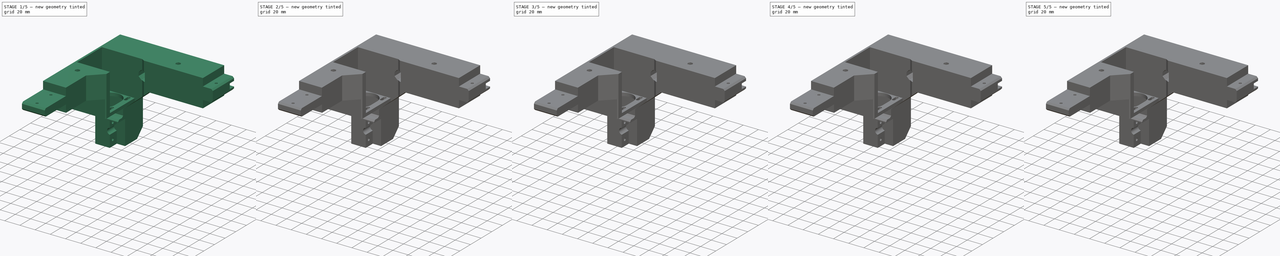
[diagram: build sequence overview — one tinted view per stage of 5, left to right]
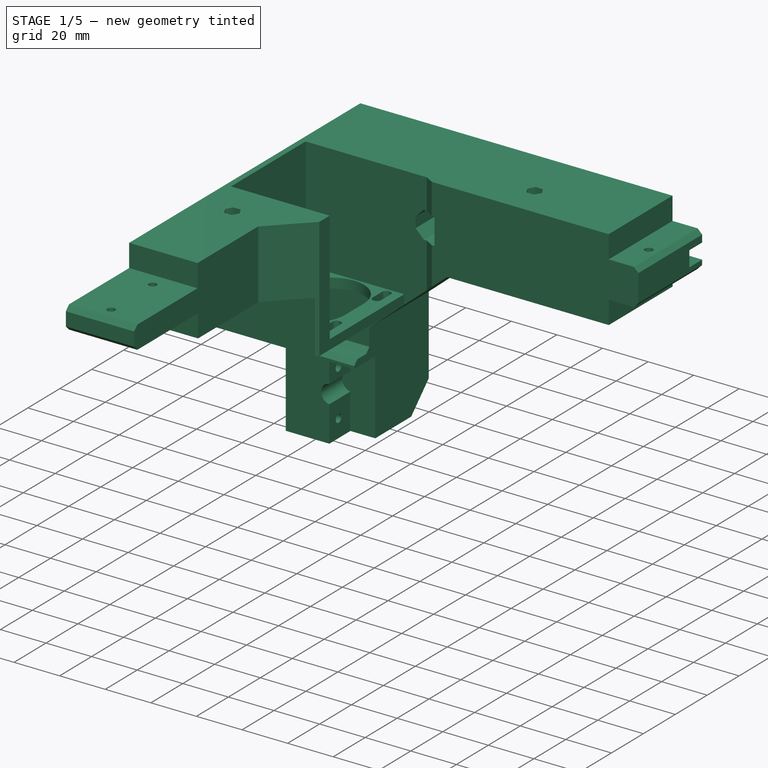
[diagram: stage 1 of 5 — iso view after this stage's code; geometry added in this stage tinted green]
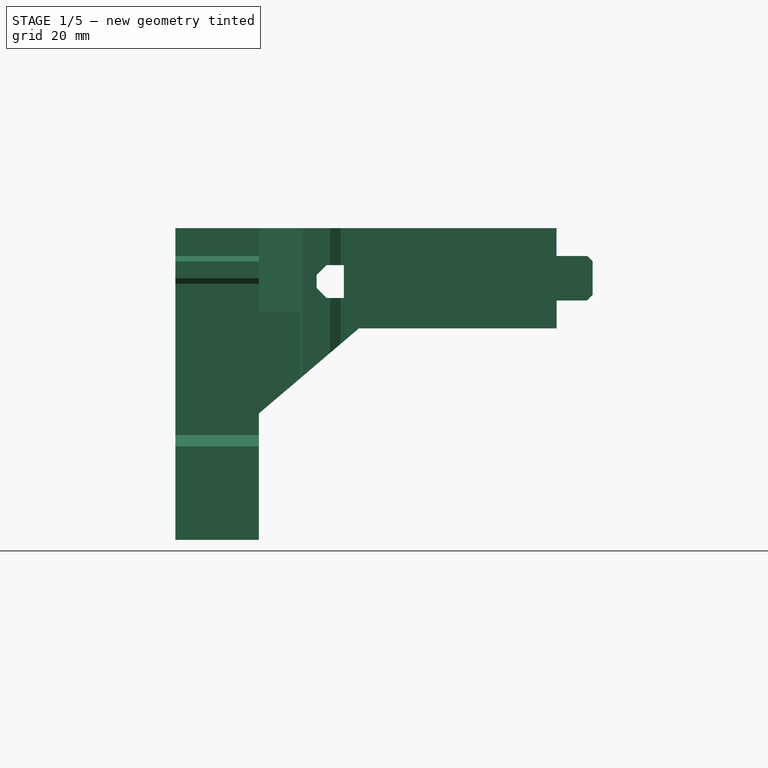
[diagram: stage 1 of 5 — front view after this stage's code; geometry added in this stage tinted green]
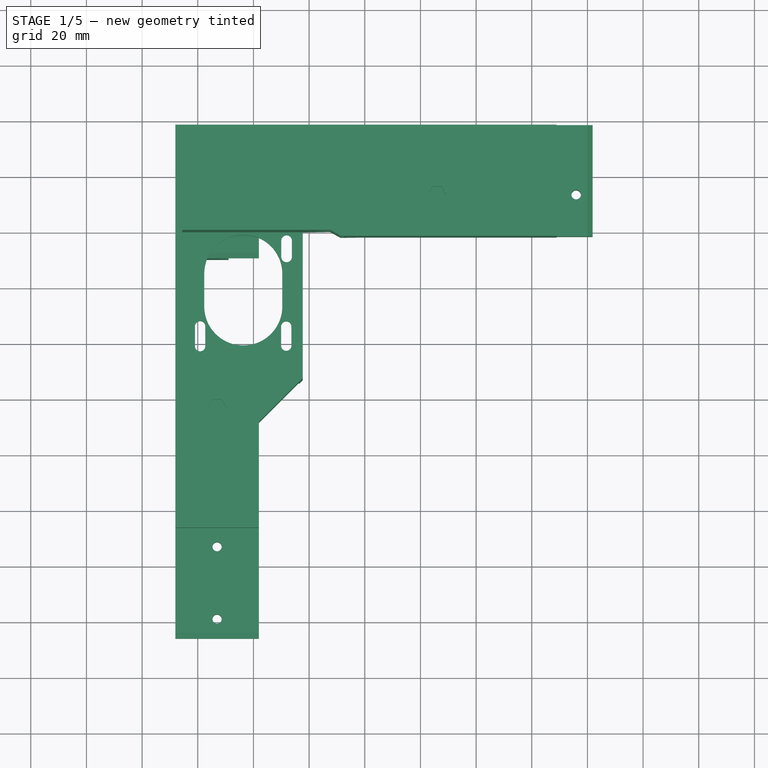
[diagram: stage 1 of 5 — top view after this stage's code; geometry added in this stage tinted green]
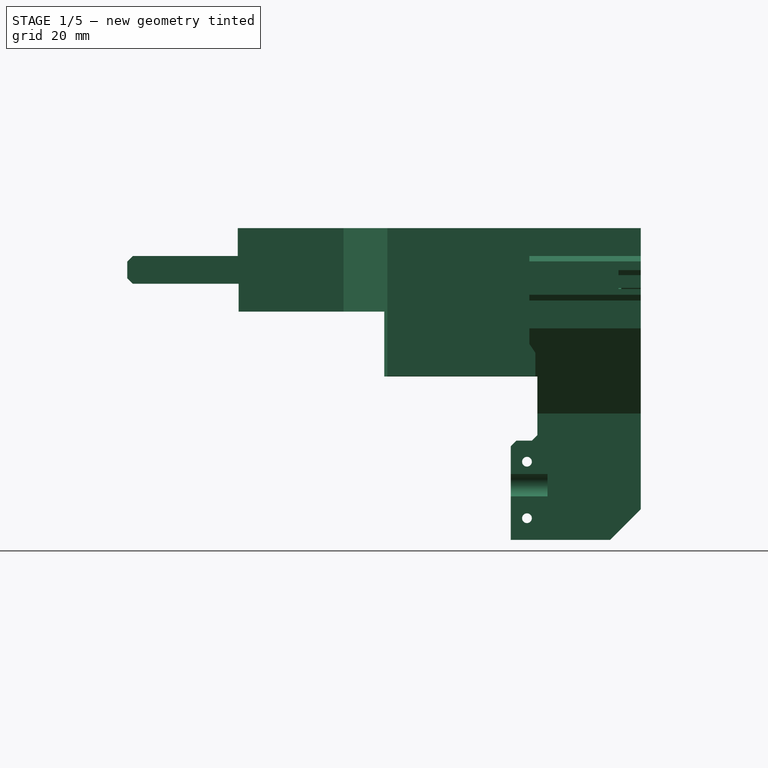
[diagram: stage 1 of 5 — right view after this stage's code; geometry added in this stage tinted green]
FCSTD DOCUMENT  (FreeCAD 2024.2R37179 (Git))
Label: TOP_Left_Rear_Frame_extrusion
License: All rights reserved
LicenseURL: http://en.wikipedia.org/wiki/All_rights_reserved
objects: PartDesign::Pocket×6, Sketcher::SketchObject×4, PartDesign::Pad×4, PartDesign::Chamfer×4, Part::Feature×1, PartDesign::FeatureBase×1, PartDesign::Body×1
note: 35 computed .brp shape members not serialized (recipe doc carries the construction recipe); baked Part::Feature solids carry a one-line shape summary decoded from their .brp

FEATURE [Part::Feature] Part__Mirroring001  label="Pocket002 (Mirror #1)001"
  shape: bbox 149.9 x 184.5 x 112 mm, 138 faces (baked)
FEATURE [PartDesign::FeatureBase] BaseFeature
  BaseFeature = -> Part__Mirroring001
  Suppressed = false
FEATURE [Sketcher::SketchObject] Sketch
  AttachmentSupport = -> [BaseFeature]
  FullyConstrained = false
  MapMode = 5
  Placement = pos=(0,196.999,0) rot=(0,0.707107,0.707107;3.14159rad)
  sketch-geometry (4):
    g0: LineSegment StartX=-11.8502 StartY=14.2324 StartZ=0 EndX=-104.775 EndY=14.2324 EndZ=0
    g1: LineSegment StartX=-104.775 StartY=14.2324 StartZ=0 EndX=-104.775 EndY=7.43995 EndZ=0
    g2: LineSegment StartX=-104.775 StartY=7.43995 StartZ=0 EndX=-11.8502 EndY=7.43995 EndZ=0
    g3: LineSegment StartX=-11.8502 StartY=7.43995 StartZ=0 EndX=-11.8502 EndY=14.2324 EndZ=0
  constraints (8):
    c: Coincident(g0,g1)
    c: Coincident(g1,g2)
    c: Coincident(g2,g3)
    c: Coincident(g3,g0)
    c: Horizontal(g0)
    c: Horizontal(g2)
    c: Vertical(g1)
    c: Vertical(g3)
FEATURE [PartDesign::Pocket] Pocket
  BaseFeature = -> BaseFeature
  Direction = (0,-1,2e-16)
  Length = 8
  Length2 = 5
  Profile = -> Sketch
  ReferenceAxis = -> Sketch [N_Axis]
  Refine = true
  Suppressed = false
  Type = 0
FEATURE [Sketcher::SketchObject] Sketch001
  AttachmentSupport = -> [Pocket]
  FullyConstrained = false
  MapMode = 5
  Placement = pos=(-34.857,0,0) rot=(0.57735,0.57735,0.57735;2.0944rad)
  sketch-geometry (8):
    g0: LineSegment StartX=196.354 StartY=-26.4698 StartZ=0 EndX=192.354 EndY=-26.4698 EndZ=0
    g1: LineSegment StartX=192.354 StartY=-26.4698 StartZ=0 EndX=192.354 EndY=-29.4698 EndZ=0
    g2: LineSegment StartX=192.354 StartY=-29.4698 StartZ=0 EndX=196.354 EndY=-29.4698 EndZ=0
    g3: LineSegment StartX=196.354 StartY=-29.4698 StartZ=0 EndX=196.354 EndY=-26.4698 EndZ=0
    g4: LineSegment StartX=196.354 StartY=-48.482 StartZ=0 EndX=192.354 EndY=-48.482 EndZ=0
    g5: LineSegment StartX=192.354 StartY=-48.482 StartZ=0 EndX=192.354 EndY=-51.482 EndZ=0
    g6: LineSegment StartX=192.354 StartY=-51.482 StartZ=0 EndX=196.354 EndY=-51.482 EndZ=0
    g7: LineSegment StartX=196.354 StartY=-51.482 StartZ=0 EndX=196.354 EndY=-48.482 EndZ=0
  constraints (20):
    c: Coincident(g0,g1)
    c: Coincident(g1,g2)
    c: Coincident(g2,g3)
    c: Coincident(g3,g0)
    c: Horizontal(g0)
    c: Horizontal(g2)
    c: Vertical(g1)
    c: Vertical(g3)
    c: DistanceY(g3,g3) = 3
    c: DistanceX(g0,g0) = 4
    c: Coincident(g4,g5)
    c: Coincident(g5,g6)
    c: Coincident(g6,g7)
    c: Coincident(g7,g4)
    c: Horizontal(g4)
    c: Horizontal(g6)
    c: Vertical(g5)
    c: Vertical(g7)
    c: DistanceY(g7,g7) = 3
    c: DistanceX(g4,g4) = 4
FEATURE [PartDesign::Pad] Pad
  BaseFeature = -> Pocket
  Direction = (1,0,0)
  Length = 8
  Length2 = 10
  Profile = -> Sketch001
  ReferenceAxis = -> Sketch001 [N_Axis]
  Refine = true
  Suppressed = false
  Type = 0
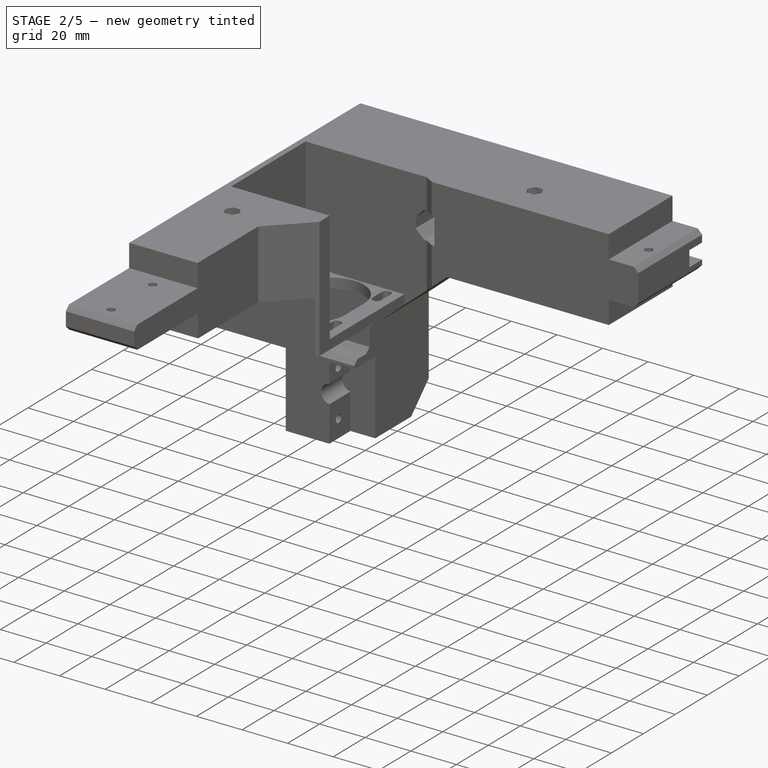
[diagram: stage 2 of 5 — iso view after this stage's code; geometry added in this stage tinted green]
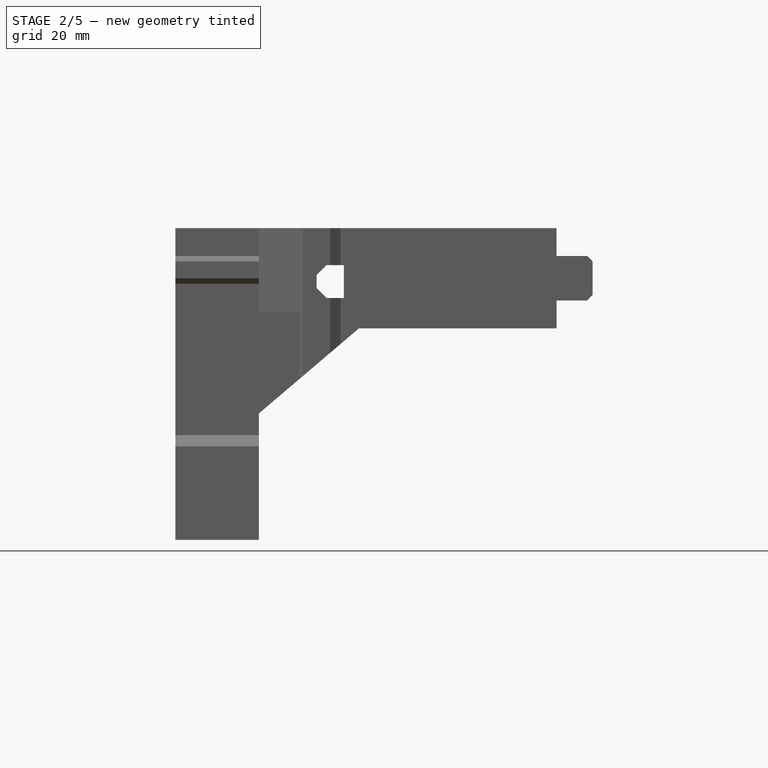
[diagram: stage 2 of 5 — front view after this stage's code; geometry added in this stage tinted green]
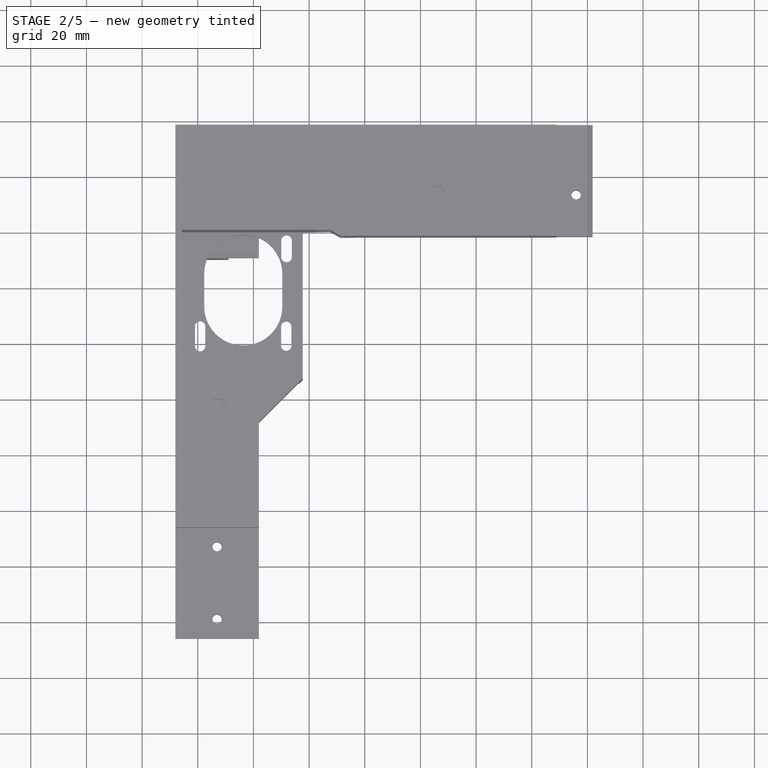
[diagram: stage 2 of 5 — top view after this stage's code; geometry added in this stage tinted green]
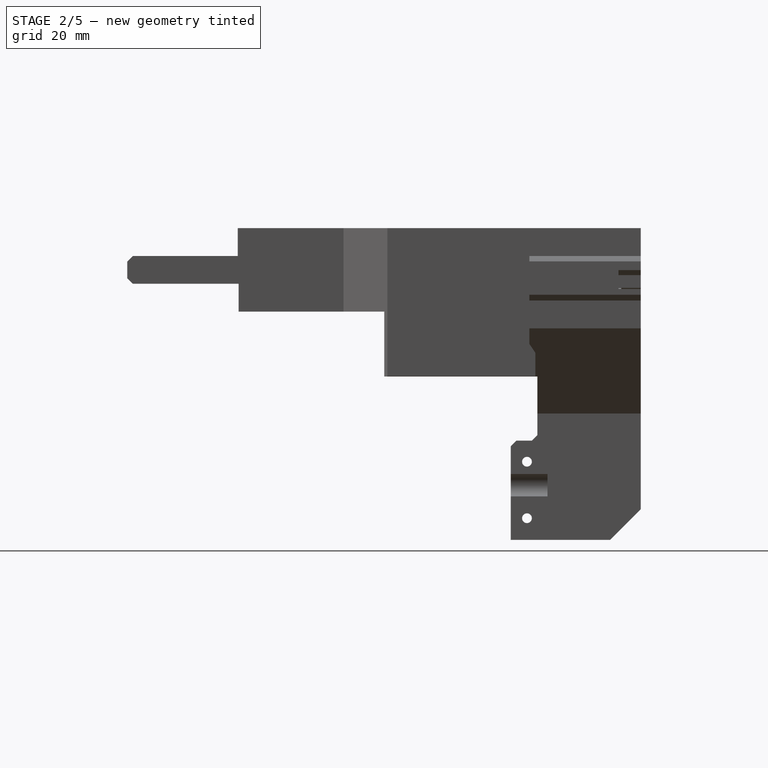
[diagram: stage 2 of 5 — right view after this stage's code; geometry added in this stage tinted green]
FEATURE [PartDesign::Pad] Pad001
  BaseFeature = -> Pad
  Direction = (0,1,0)
  Length = 10
  Length2 = 10
  Profile = -> Pad [Face35,Face39]
  Refine = true
  Suppressed = false
  Type = 0
FEATURE [PartDesign::Pocket] Pocket001
  BaseFeature = -> Pad001
  Direction = (1,0,0)
  Length = 8
  Length2 = 5
  Profile = -> Pad001 [Face11,Face12]
  Refine = true
  Suppressed = false
  Type = 0
FEATURE [PartDesign::Chamfer] Chamfer
  Angle = 45
  Base = -> Pocket001 [Edge58]
  BaseFeature = -> Pocket001
  ChamferType = 0
  FlipDirection = false
  Refine = true
  Size = 4
  Size2 = 1
  SupportTransform = false
  Suppressed = false
  UseAllEdges = false
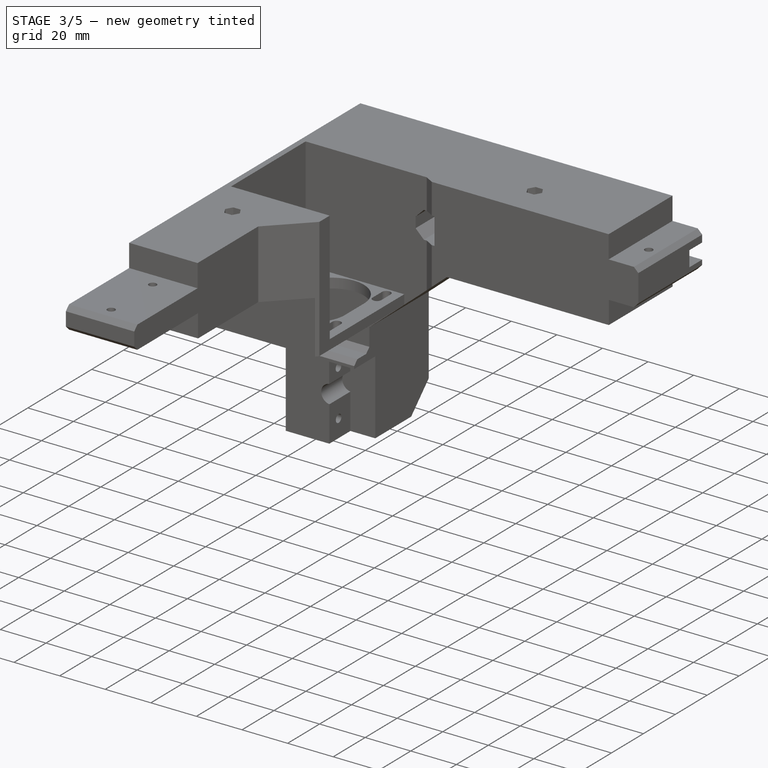
[diagram: stage 3 of 5 — iso view after this stage's code; geometry added in this stage tinted green]
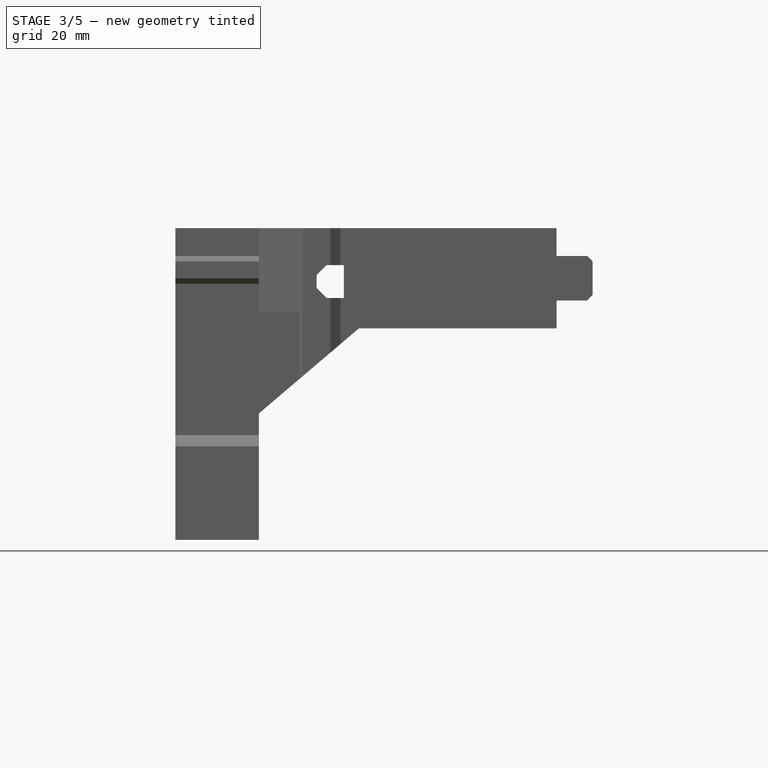
[diagram: stage 3 of 5 — front view after this stage's code; geometry added in this stage tinted green]
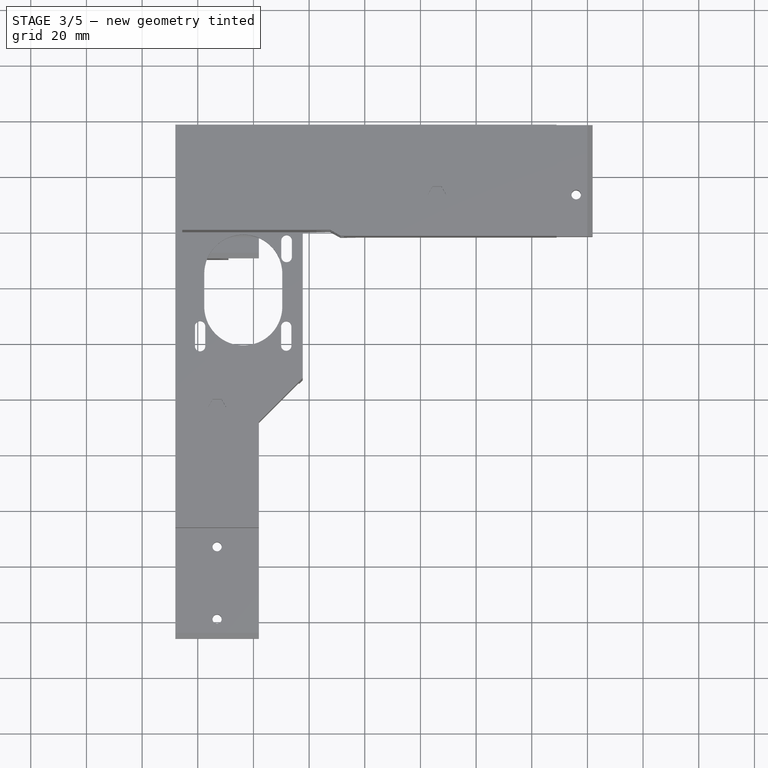
[diagram: stage 3 of 5 — top view after this stage's code; geometry added in this stage tinted green]
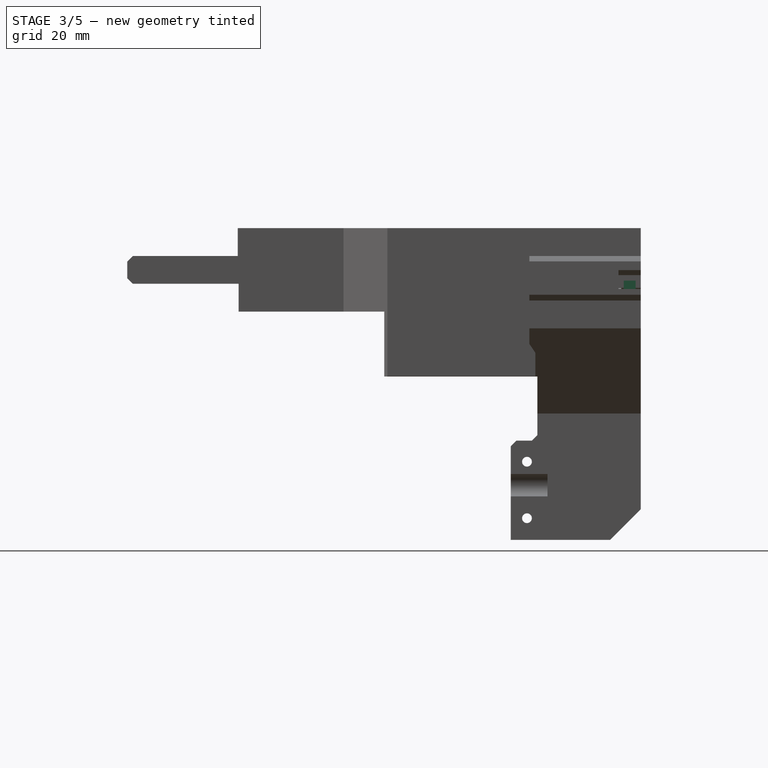
[diagram: stage 3 of 5 — right view after this stage's code; geometry added in this stage tinted green]
FEATURE [PartDesign::Chamfer] Chamfer001
  Angle = 45
  Base = -> Chamfer [Edge61]
  BaseFeature = -> Chamfer
  ChamferType = 0
  FlipDirection = false
  Refine = true
  Size = 4
  Size2 = 1
  SupportTransform = false
  Suppressed = false
  UseAllEdges = false
FEATURE [Sketcher::SketchObject] Sketch002
  AttachmentSupport = -> [Chamfer001]
  FullyConstrained = false
  MapMode = 5
  Placement = pos=(0,1.6e-15,7.43995) rot=(0,0,1;0rad)
  sketch-geometry (8):
    g0: LineSegment StartX=25.7201 StartY=195.173 StartZ=0 EndX=25.7201 EndY=191.173 EndZ=0
    g1: LineSegment StartX=25.7201 StartY=191.173 StartZ=0 EndX=28.7201 EndY=191.173 EndZ=0
    g2: LineSegment StartX=28.7201 StartY=191.173 StartZ=0 EndX=28.7201 EndY=195.173 EndZ=0
    g3: LineSegment StartX=28.7201 StartY=195.173 StartZ=0 EndX=25.7201 EndY=195.173 EndZ=0
    g4: LineSegment StartX=82.2057 StartY=194.883 StartZ=0 EndX=82.2057 EndY=190.883 EndZ=0
    g5: LineSegment StartX=82.2057 StartY=190.883 StartZ=0 EndX=85.2057 EndY=190.883 EndZ=0
    g6: LineSegment StartX=85.2057 StartY=190.883 StartZ=0 EndX=85.2057 EndY=194.883 EndZ=0
    g7: LineSegment StartX=85.2057 StartY=194.883 StartZ=0 EndX=82.2057 EndY=194.883 EndZ=0
  constraints (20):
    c: Coincident(g0,g1)
    c: Coincident(g1,g2)
    c: Coincident(g2,g3)
    c: Coincident(g3,g0)
    c: Vertical(g0)
    c: Vertical(g2)
    c: Horizontal(g1)
    c: Horizontal(g3)
    c: Distance(g0,g2) = 3
    c: Distance(g1,g3) = 4
    c: Coincident(g4,g5)
    c: Coincident(g5,g6)
    c: Coincident(g6,g7)
    c: Coincident(g7,g4)
    c: Vertical(g4)
    c: Vertical(g6)
    c: Horizontal(g5)
    c: Horizontal(g7)
    c: Distance(g4,g6) = 3
    c: Distance(g5,g7) = 4
FEATURE [PartDesign::Pad] Pad002
  BaseFeature = -> Chamfer001
  Direction = (0,0,1)
  Length = 3
  Length2 = 10
  Profile = -> Sketch002
  ReferenceAxis = -> Sketch002 [N_Axis]
  Refine = true
  Suppressed = false
  Type = 0
FEATURE [PartDesign::Chamfer] Chamfer002
  Angle = 45
  Base = -> Pad002 [Edge387]
  BaseFeature = -> Pad002
  ChamferType = 0
  FlipDirection = false
  Refine = true
  Size = 2.99
  Size2 = 1
  SupportTransform = false
  Suppressed = false
  UseAllEdges = false
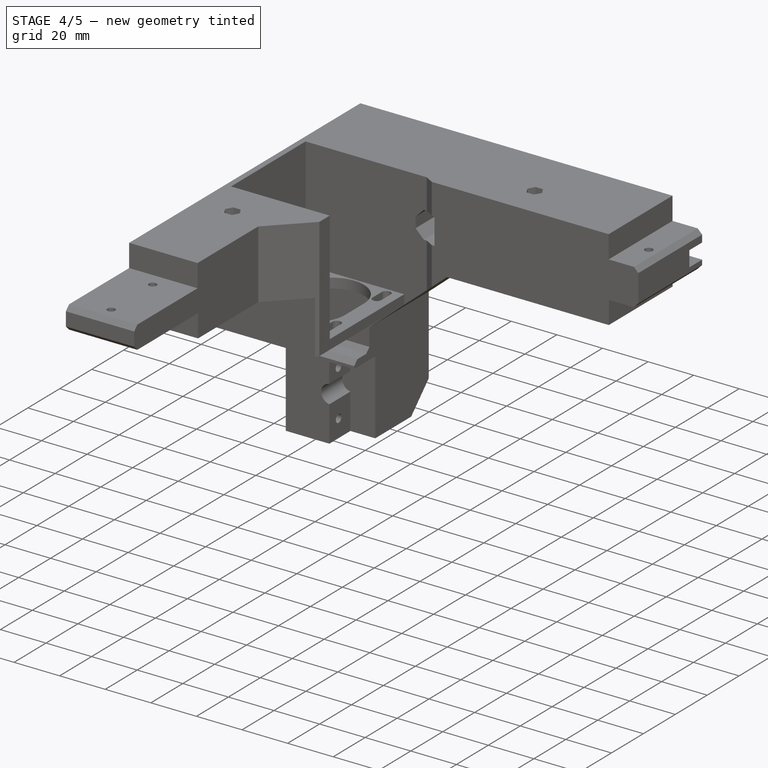
[diagram: stage 4 of 5 — iso view after this stage's code; geometry added in this stage tinted green]
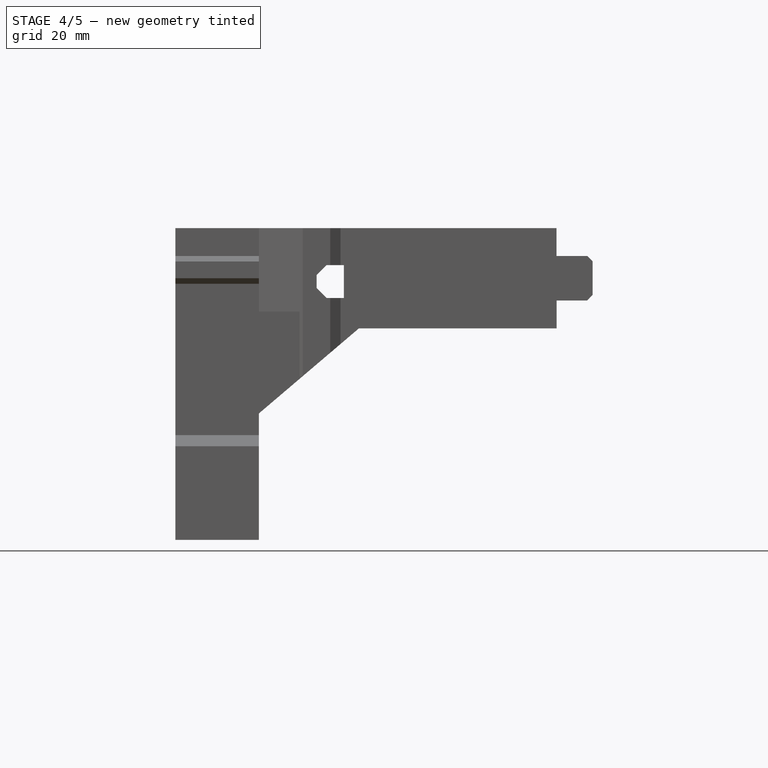
[diagram: stage 4 of 5 — front view after this stage's code; geometry added in this stage tinted green]
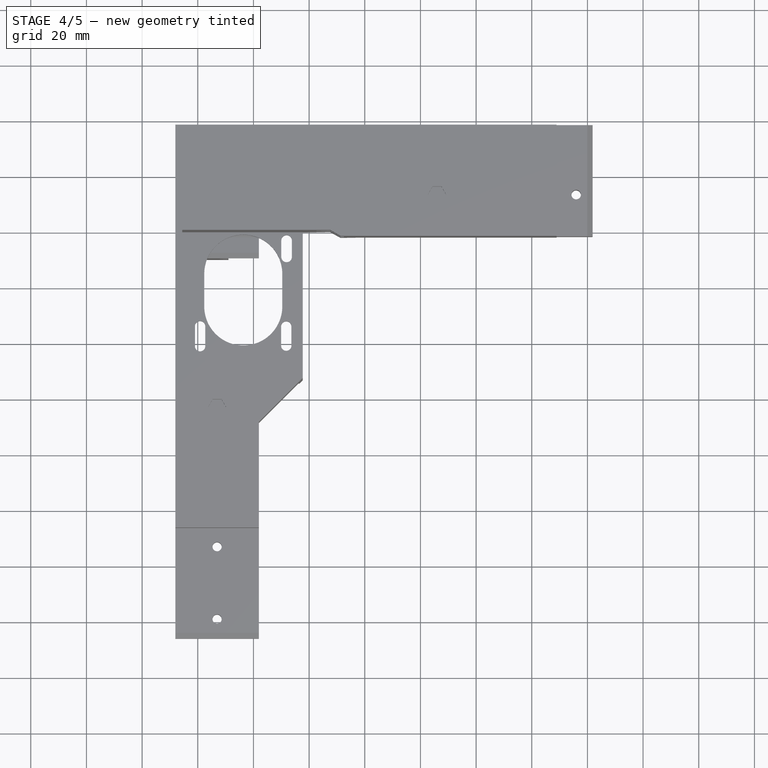
[diagram: stage 4 of 5 — top view after this stage's code; geometry added in this stage tinted green]
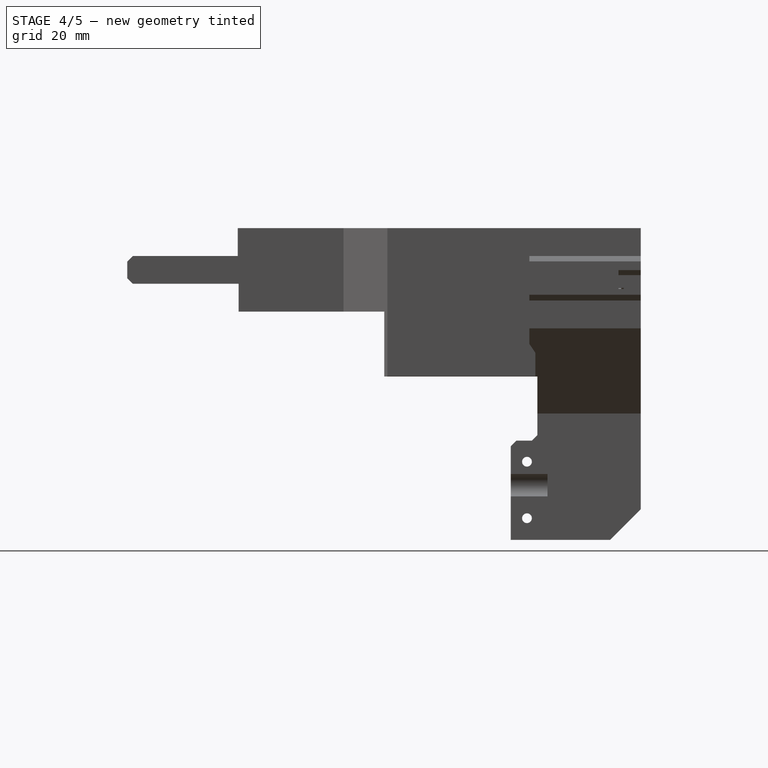
[diagram: stage 4 of 5 — right view after this stage's code; geometry added in this stage tinted green]
FEATURE [PartDesign::Chamfer] Chamfer003
  Angle = 45
  Base = -> Chamfer002 [Edge57]
  BaseFeature = -> Chamfer002
  ChamferType = 0
  FlipDirection = false
  Refine = true
  Size = 2.99
  Size2 = 1
  SupportTransform = false
  Suppressed = false
  UseAllEdges = false
FEATURE [PartDesign::Pad] Pad003
  BaseFeature = -> Chamfer003
  Direction = (0,1,0)
  Length = 10
  Length2 = 10
  Profile = -> Chamfer003 [Face1,Face12]
  Refine = true
  Suppressed = false
  Type = 0
FEATURE [PartDesign::Pocket] Pocket002
  BaseFeature = -> Pad003
  Direction = (0,0,1)
  Length = 5
  Length2 = 5
  Profile = -> Pad003 [Face13,Face4]
  Refine = true
  Suppressed = false
  Type = 0
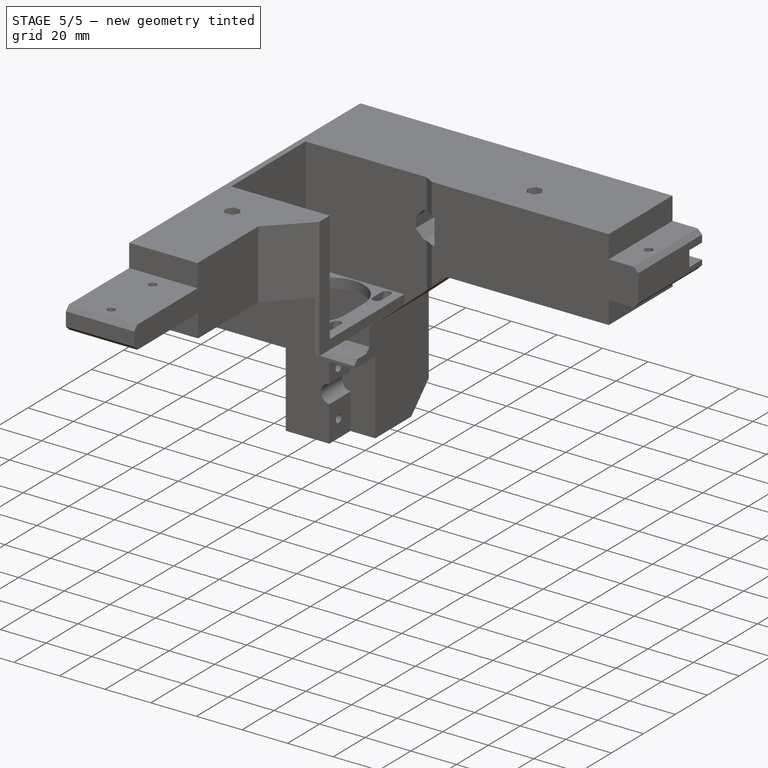
[diagram: stage 5 of 5 — iso view after this stage's code; geometry added in this stage tinted green]
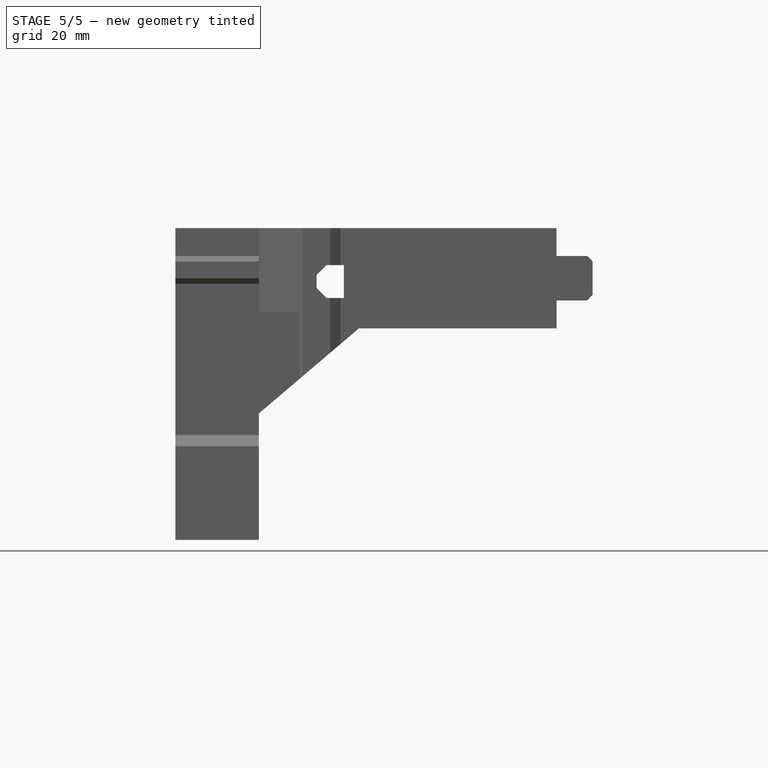
[diagram: stage 5 of 5 — front view after this stage's code; geometry added in this stage tinted green]
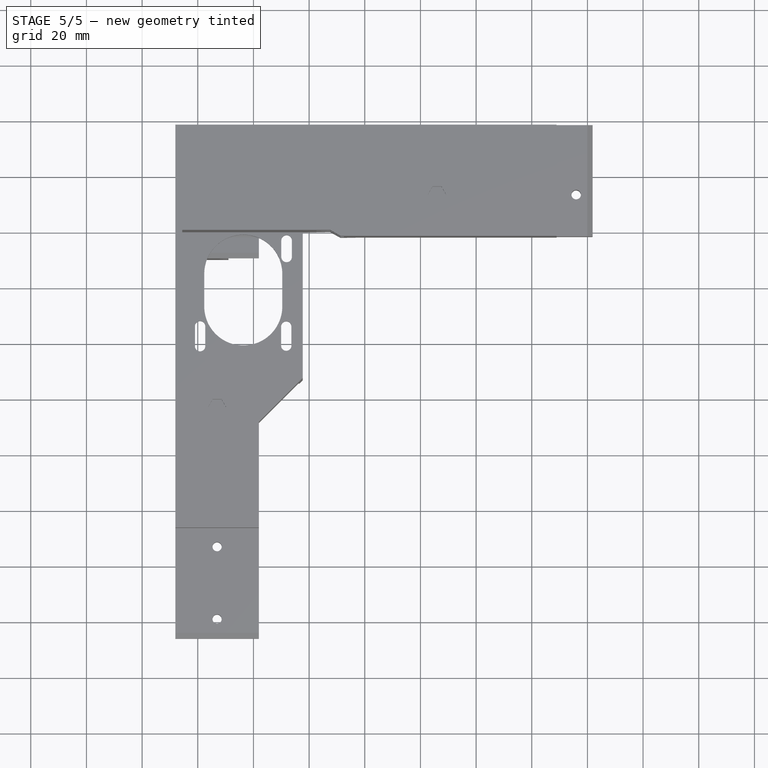
[diagram: stage 5 of 5 — top view after this stage's code; geometry added in this stage tinted green]
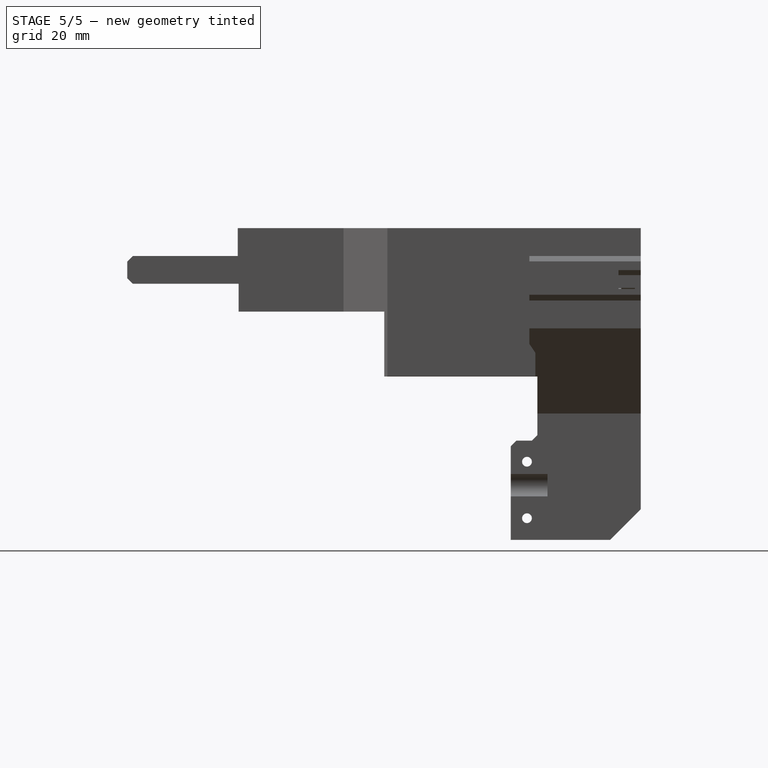
[diagram: stage 5 of 5 — right view after this stage's code; geometry added in this stage tinted green]
FEATURE [PartDesign::Pocket] Pocket003
  BaseFeature = -> Pocket002
  Direction = (0,1,0)
  Length = 4
  Length2 = 5
  Profile = -> Pocket002 [Face4]
  Refine = true
  Suppressed = false
  Type = 0
FEATURE [PartDesign::Pocket] Pocket004
  BaseFeature = -> Pocket003
  Direction = (0,1,0)
  Length = 4
  Length2 = 5
  Profile = -> Pocket003 [Face13]
  Refine = true
  Suppressed = false
  Type = 0
FEATURE [Sketcher::SketchObject] Sketch003
  AttachmentSupport = -> [Pocket004]
  FullyConstrained = false
  MapMode = 5
  Placement = pos=(0,196.999,0) rot=(0,0.707107,0.707107;3.14159rad)
  sketch-geometry (21):
    g0: LineSegment StartX=-74.7418 StartY=21.7546 StartZ=0 EndX=-76.3518 EndY=24.5432 EndZ=0
    g1: LineSegment StartX=-76.3518 StartY=24.5432 StartZ=0 EndX=-79.5718 EndY=24.5432 EndZ=0
    g2: LineSegment StartX=-79.5718 StartY=24.5432 StartZ=0 EndX=-81.1818 EndY=21.7546 EndZ=0
    g3: LineSegment StartX=-81.1818 StartY=21.7546 StartZ=0 EndX=-79.5718 EndY=18.966 EndZ=0
    g4: LineSegment StartX=-79.5718 StartY=18.966 StartZ=0 EndX=-76.3518 EndY=18.966 EndZ=0
    g5: LineSegment StartX=-76.3518 StartY=18.966 StartZ=0 EndX=-74.7418 EndY=21.7546 EndZ=0
    g6: Circle CenterX=-77.9618 CenterY=21.7546 CenterZ=0 NormalX=0 NormalY=0 NormalZ=1 AngleXU=0 Radius=3.22
    g7: LineSegment StartX=36.6488 StartY=21.7546 StartZ=0 EndX=35.0288 EndY=24.5606 EndZ=0
    g8: LineSegment StartX=35.0288 StartY=24.5606 StartZ=0 EndX=31.7888 EndY=24.5606 EndZ=0
    g9: LineSegment StartX=31.7888 StartY=24.5606 StartZ=0 EndX=30.1688 EndY=21.7546 EndZ=0
    g10: LineSegment StartX=30.1688 StartY=21.7546 StartZ=0 EndX=31.7888 EndY=18.9487 EndZ=0
    g11: LineSegment StartX=31.7888 StartY=18.9487 StartZ=0 EndX=35.0288 EndY=18.9487 EndZ=0
    g12: LineSegment StartX=35.0288 StartY=18.9487 StartZ=0 EndX=36.6488 EndY=21.7546 EndZ=0
    g13: Circle CenterX=33.4088 CenterY=21.7546 CenterZ=0 NormalX=0 NormalY=0 NormalZ=1 AngleXU=0 Radius=3.24
    g14: LineSegment StartX=44.3199 StartY=-63.2335 StartZ=0 EndX=42.6999 EndY=-60.4276 EndZ=0
    g15: LineSegment StartX=42.6999 StartY=-60.4276 StartZ=0 EndX=39.4599 EndY=-60.4276 EndZ=0
    g16: LineSegment StartX=39.4599 StartY=-60.4276 StartZ=0 EndX=37.8399 EndY=-63.2335 EndZ=0
    g17: LineSegment StartX=37.8399 StartY=-63.2335 StartZ=0 EndX=39.4599 EndY=-66.0394 EndZ=0
    g18: LineSegment StartX=39.4599 StartY=-66.0394 StartZ=0 EndX=42.6999 EndY=-66.0394 EndZ=0
    g19: LineSegment StartX=42.6999 StartY=-66.0394 StartZ=0 EndX=44.3199 EndY=-63.2335 EndZ=0
    g20: Circle CenterX=41.0799 CenterY=-63.2335 CenterZ=0 NormalX=0 NormalY=0 NormalZ=1 AngleXU=0 Radius=3.24
  constraints (42):
    c: Coincident(g0,g1)
    c: Coincident(g1,g2)
    c: Coincident(g2,g3)
    c: Coincident(g3,g4)
    c: Coincident(g4,g5)
    c: Coincident(g5,g0)
    c: Equal(g0, g1-g5) x5
    c: PointOnObject(g0,g6)
    c: PointOnObject(g1,g6)
    c: PointOnObject(g2,g6)
    c: PointOnObject(g3,g6)
    c: PointOnObject(g4,g6)
    c: PointOnObject(g5,g6)
    c: Radius(g6) = 3.22
    c: Coincident(g7,g8)
    c: Coincident(g8,g9)
    c: Coincident(g9,g10)
    c: Coincident(g10,g11)
    c: Coincident(g11,g12)
    c: Coincident(g12,g7)
    c: Equal(g7, g8-g12) x5
    c: PointOnObject(g7,g13)
    c: PointOnObject(g8,g13)
    c: PointOnObject(g9,g13)
    c: PointOnObject(g10,g13)
    c: PointOnObject(g11,g13)
    c: PointOnObject(g12,g13)
    c: Radius(g13) = 3.24
    c: Coincident(g14,g15)
    c: Coincident(g15,g16)
    c: Coincident(g16,g17)
    c: Coincident(g17,g18)
    c: Coincident(g18,g19)
    c: Coincident(g19,g14)
    c: Equal(g14, g15-g19) x5
    c: PointOnObject(g14,g20)
    c: PointOnObject(g15,g20)
    c: PointOnObject(g16,g20)
    c: PointOnObject(g17,g20)
    c: PointOnObject(g18,g20)
    c: PointOnObject(g19,g20)
    c: Radius(g20) = 3.24
FEATURE [PartDesign::Pocket] Pocket005
  BaseFeature = -> Pocket004
  Direction = (0,-1,2e-16)
  Length = 5
  Length2 = 5
  Profile = -> Sketch003
  ReferenceAxis = -> Sketch003 [N_Axis]
  Refine = true
  Suppressed = false
  Type = 0
FEATURE [PartDesign::Body] Body
  BaseFeature = -> Part__Mirroring001
  Group = -> [BaseFeature,Sketch,Pocket,Sketch001,Pad,Pad001,Pocket001,Chamfer,Chamfer001,Sketch002,Pad002,Chamfer002,Chamfer003,Pad003,Pocket002,Pocket003,Pocket004,Sketch003,Pocket005]
  Origin = -> Origin
  Tip = -> Pocket005
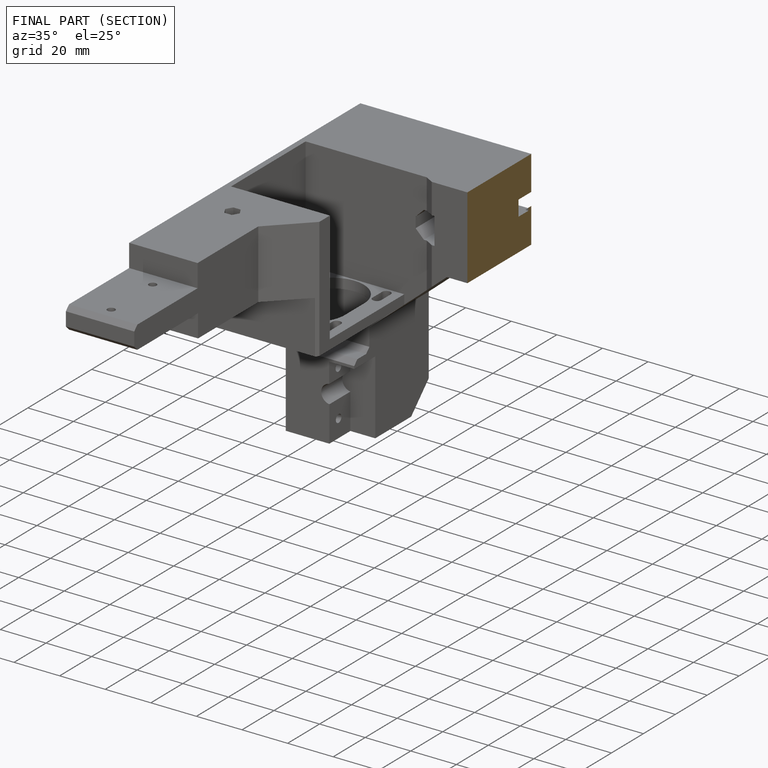
[diagram: finished part — half-section view (interior)]
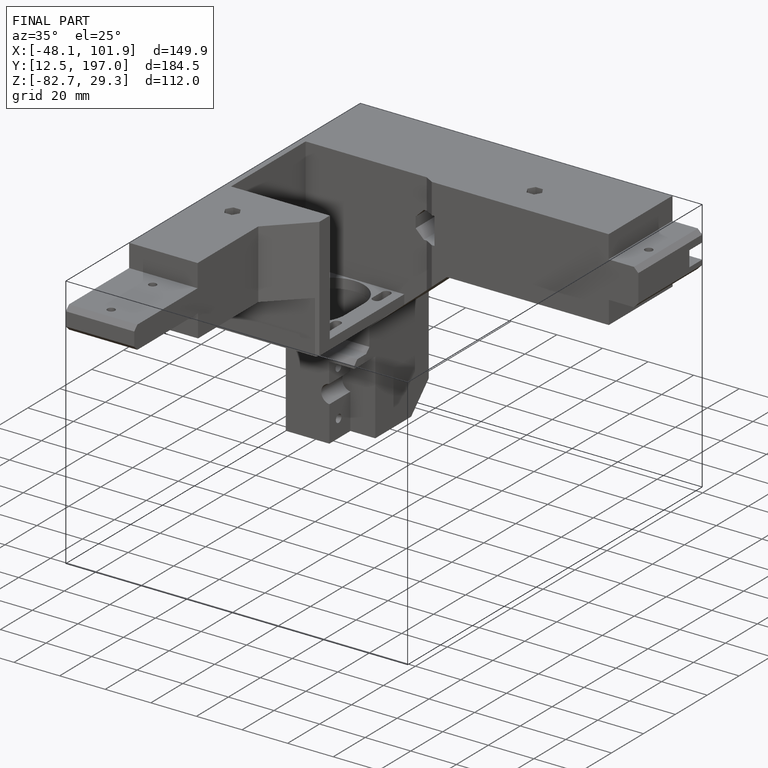
[diagram: finished part — iso view with bounding-box wireframe]
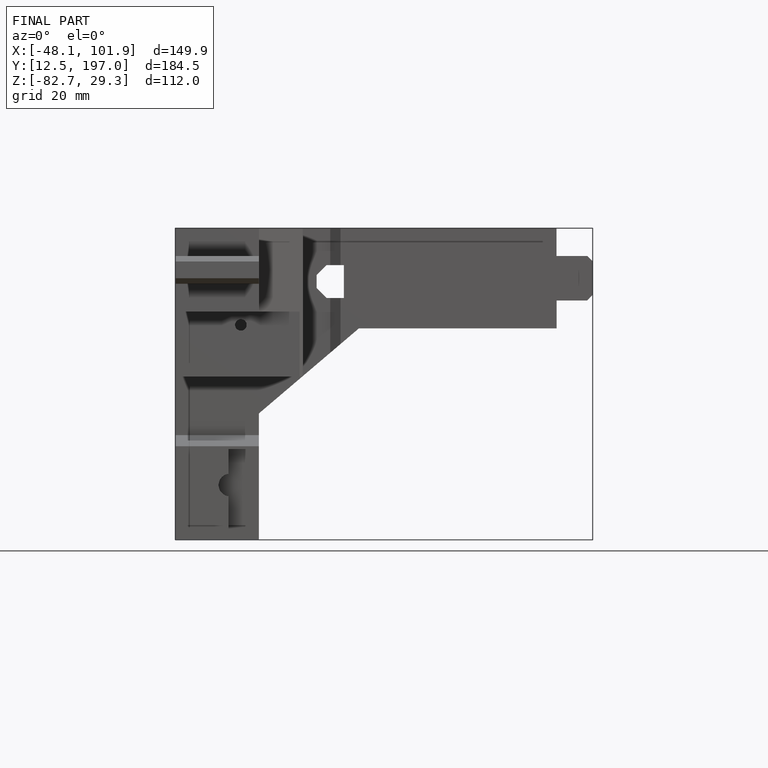
[diagram: finished part — front view with bounding-box wireframe]
